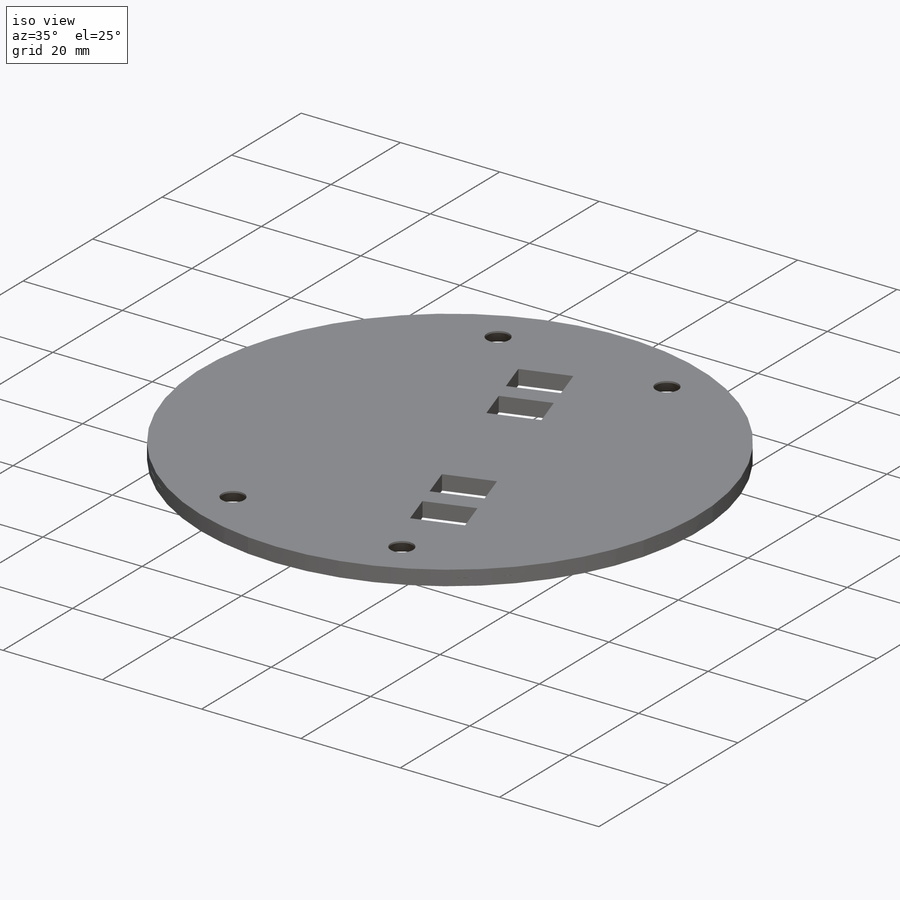
[diagram: iso view]
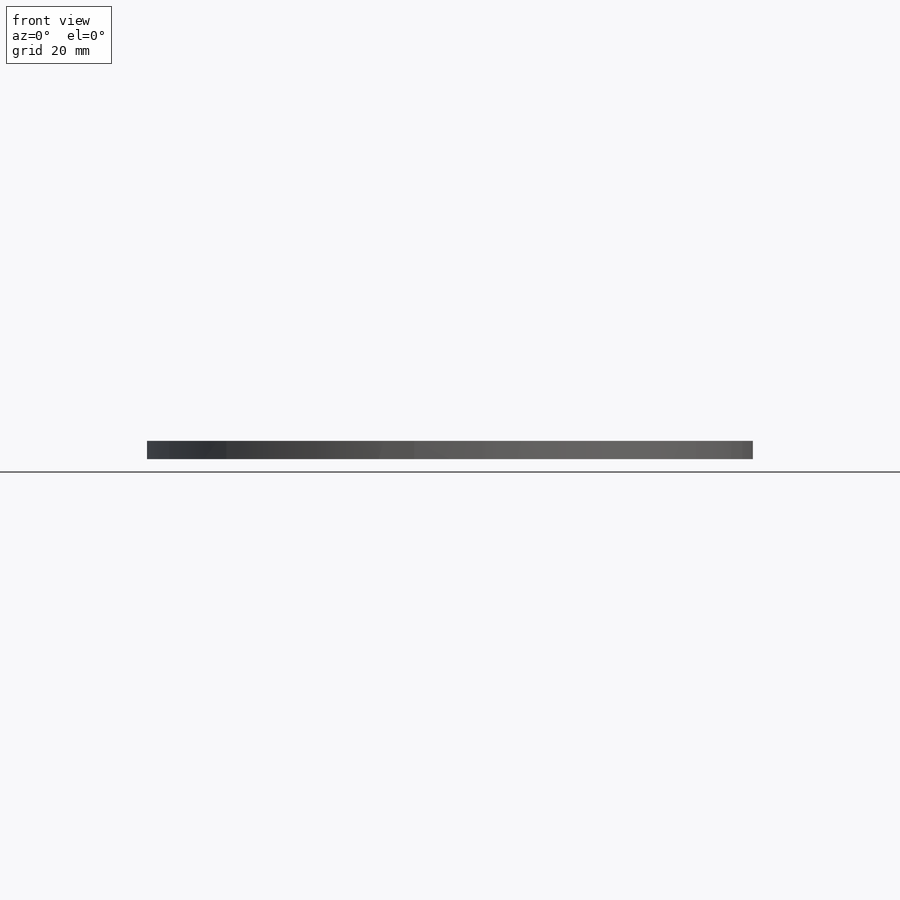
[diagram: front view]
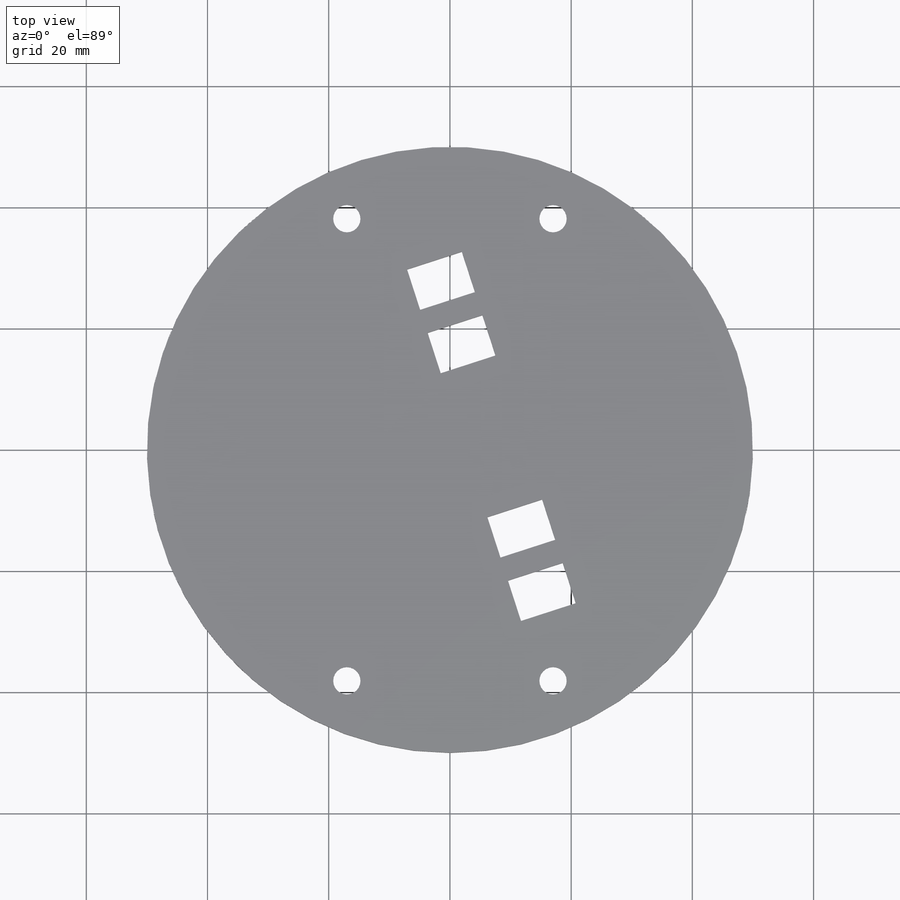
[diagram: top view]
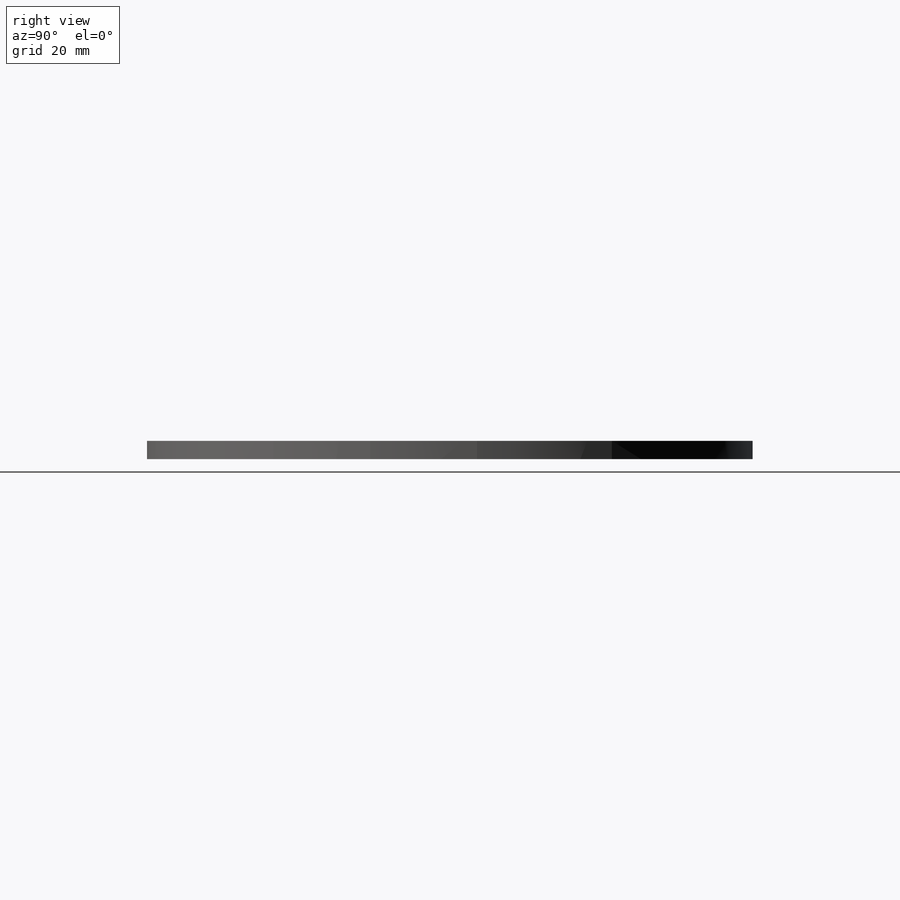
[diagram: right view]
SOLIDWORKS PART (.sldprt)
format: sldprt  version: not decoded by parser v0  size: 813,056 bytes
history: native  units: mm
features: sketch x15, cut_extrude x2, extrude x2, move_body x2, material x1, hole x1 + 2 further entries (+22 scaffold rows collapsed; 8 parser-record rows omitted)
feature tree (55):
  scaffold x22  (default folders/planes/origin — collapsed)
  material  "ABS"
  "a_base_t"
  parser-record x8  (decoder bookkeeping rows leaked as tree rows — omitted from the tree; the rows remain in map.json)
  sketch  "Sketch1"  dims[c1.D1=6.5mm c1.D2=6.5mm c1.D3=6.5mm c2.D2=22.0mm c2.D3=22.0mm c2.D5=21.485mm c2.D6=7.0mm c2.D7=9.5mm c2.D8=2.0mm c2.D9=2.45mm]
  cut_extrude  "Base Pulley Cutout"  [1 undecoded]
  sketch  "Sketch2"  dims[D1=100.0mm]
  extrude  "Outer Ring"  [1 undecoded]
  sketch  "Sketch3"
  extrude  "Patching"  [1 undecoded]
  hole  "CSK for #8 Flat Head Socket Cap Screw1"  Diameter=4.4958mm Depth=3mm
  sketch  "Sketch7"
  sketch  "Sketch6"  dims[hole-wizard template sketch: 55 standard entries collapsed; hole parameters kept: c17.Thru Hole Depth=3.0mm c17.Near C'Sink Dia.=9.1186mm c17.D4=~3.666174mm c17.Near C'Sink Angle=82.0deg]
  sketch  "Sketch1-dovetail_female"  dims[c1.D1=~9.515924mm c1.D2=~10.925691mm c2.D1=13.5mm c2.D2=49.0mm]
  sketch  "Sketch1-dovetail_male-dovetail_female"  dims[c1.D1=10.0mm c1.D2=~6.409122mm c2.D2=45.0deg c2.D3=3.0mm c2.D4=~14.511515mm c2.D1=12.0mm c3.D2=3.0mm c3.D3=~5.973698mm c4.D3=45.0deg c4.D4=25.0mm]
  sketch  "Sketch9-dovetail_male-dovetail_female"  dims[c1.D1=12.0mm c1.D2=6.0mm c2.D1=~16.178239mm]
  sketch  "Sketch10-dovetail_male-dovetail_female"  dims[D1=~2.410913mm]
  sketch  "Sketch11-dovetail_male-dovetail_female"  dims[c1.D1=~30.096908mm c1.D2=~14.271345mm c2.D1=6.0mm c2.D2=6.0mm c2.D3=6.0mm]
  sketch  "Sketch6-dovetail_female"  dims[D1=60.0mm D2=~25.279678mm]
  sketch  "Sketch7-dovetail_female"  dims[D1=~17.347524mm]
  sketch  "Sketch12-dovetail_female"  dims[c1.D2=25.0mm c1.D3=25.35mm c1.D1=0.0mm c2.D2=0.175mm c2.D1=0.0mm c3.D2=0.175mm]
  sketch  "Sketch13-dovetail_female"  dims[D2=25.7mm D1=0.175mm]
  sketch  "Sketch9"  dims[D1=0.0mm D2=0.0mm D3=0.0mm D4=0.0mm D5=0.075mm]
  cut_extrude  "Print Clearances - Base Pulley Cutout"  [1 undecoded]
  "dovetail_female"
  move_body  "Body-Move/Copy2"
  move_body  "Coordinate System1"
decode coverage: 14 of 22 modeling features carry decoded parameters; 2 rows unclassified (native names shown)
note: ~ marks probable driven/reference dimensions
note: 4 parameter values undecoded
summary: no parameter record found for 4 features
note: suppression state not decoded; provenance and decode notes live in map.json
